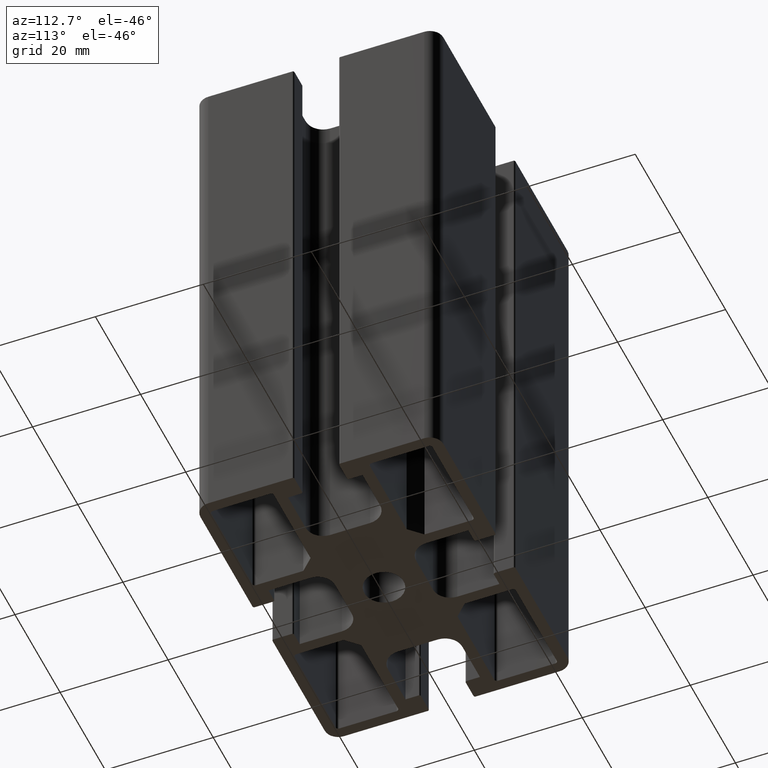
[diagram: clean part render]
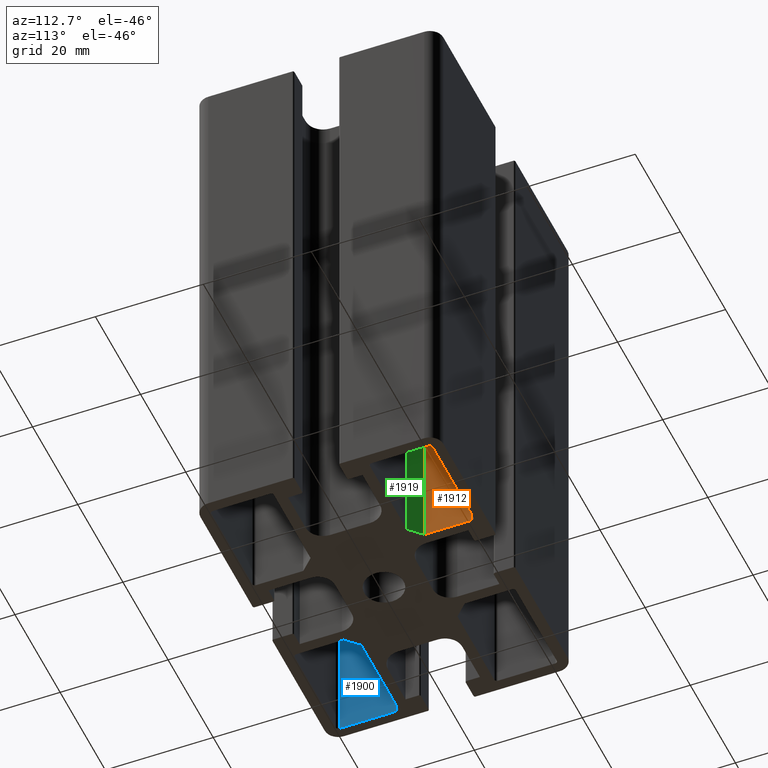
[diagram: same view with three faces highlighted in distinct colors, each labeled with its STEP entity id]
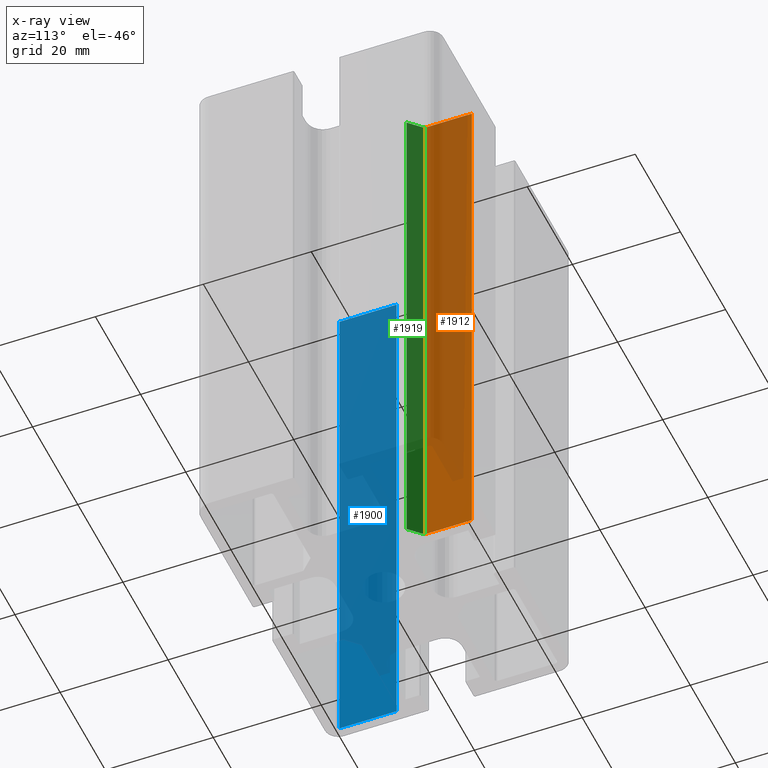
[diagram: x-ray of the same camera — body ghosted, the three highlighted faces saturated]
A machine part, auxiliary view with three faces highlighted in distinct colors.
The next image is the same camera in x-ray (body ghosted, the three faces saturated) — at least one of them is partly hidden behind the body in this view.
Their STEP definitions:

[orange] entity #1912 — the highlighted planar face has unit normal (-1, 0, 0).
#165=FACE_OUTER_BOUND('',#264,.T.);
#264=EDGE_LOOP('',(#1322,#1323,#1324,#1325));
#394=LINE('',#2850,#602);
#395=LINE('',#2852,#603);
#396=LINE('',#2854,#604);
#397=LINE('',#2855,#605);
#602=VECTOR('',#2274,100.);
#603=VECTOR('',#2275,8.76654762208545);
#604=VECTOR('',#2276,100.);
#605=VECTOR('',#2277,8.76654762208545);
#806=VERTEX_POINT('',#2848);
#807=VERTEX_POINT('',#2849);
#808=VERTEX_POINT('',#2851);
#809=VERTEX_POINT('',#2853);
#1016=EDGE_CURVE('',#806,#807,#394,.T.);
#1017=EDGE_CURVE('',#808,#807,#395,.T.);
#1018=EDGE_CURVE('',#809,#808,#396,.T.);
#1019=EDGE_CURVE('',#806,#809,#397,.T.);
#1322=ORIENTED_EDGE('',*,*,#1016,.T.);
#1323=ORIENTED_EDGE('',*,*,#1017,.F.);
#1324=ORIENTED_EDGE('',*,*,#1018,.F.);
#1325=ORIENTED_EDGE('',*,*,#1019,.F.);
#1848=PLANE('',#2025);
#1912=ADVANCED_FACE('',(#165),#1848,.F.);
#2025=AXIS2_PLACEMENT_3D('',#2847,#2272,#2273);
#2272=DIRECTION('center_axis',(-1.,0.,0.));
#2273=DIRECTION('ref_axis',(0.,-1.,0.));
#2274=DIRECTION('',(0.,0.,-1.));
#2275=DIRECTION('',(0.,-1.,0.));
#2276=DIRECTION('',(0.,0.,-1.));
#2277=DIRECTION('',(0.,1.,0.));
#2847=CARTESIAN_POINT('Origin',(8.90000000000072,20.,0.));
#2848=CARTESIAN_POINT('',(8.90000000000072,11.2334523779145,50.));
#2849=CARTESIAN_POINT('',(8.90000000000072,11.2334523779145,-50.));
#2850=CARTESIAN_POINT('',(8.90000000000072,11.2334523779145,0.));
#2851=CARTESIAN_POINT('',(8.90000000000072,20.,-50.));
#2852=CARTESIAN_POINT('',(8.90000000000072,10.0000000000001,-50.));
#2853=CARTESIAN_POINT('',(8.90000000000072,20.,50.));
#2854=CARTESIAN_POINT('',(8.90000000000072,20.,0.));
#2855=CARTESIAN_POINT('',(8.90000000000072,10.0000000000001,50.));

[blue] entity #1900 — the highlighted planar face has unit normal (-1, 0, 0).
#153=FACE_OUTER_BOUND('',#252,.T.);
#252=EDGE_LOOP('',(#1274,#1275,#1276,#1277));
#366=LINE('',#2776,#574);
#367=LINE('',#2780,#575);
#368=LINE('',#2782,#576);
#369=LINE('',#2783,#577);
#574=VECTOR('',#2202,100.);
#575=VECTOR('',#2207,10.5999999999996);
#576=VECTOR('',#2208,100.);
#577=VECTOR('',#2209,10.5999999999996);
#782=VERTEX_POINT('',#2773);
#783=VERTEX_POINT('',#2775);
#784=VERTEX_POINT('',#2779);
#785=VERTEX_POINT('',#2781);
#979=EDGE_CURVE('',#783,#782,#366,.T.);
#981=EDGE_CURVE('',#784,#782,#367,.T.);
#982=EDGE_CURVE('',#785,#784,#368,.T.);
#983=EDGE_CURVE('',#783,#785,#369,.T.);
#1274=ORIENTED_EDGE('',*,*,#979,.T.);
#1275=ORIENTED_EDGE('',*,*,#981,.F.);
#1276=ORIENTED_EDGE('',*,*,#982,.F.);
#1277=ORIENTED_EDGE('',*,*,#983,.F.);
#1840=PLANE('',#2005);
#1900=ADVANCED_FACE('',(#153),#1840,.F.);
#2005=AXIS2_PLACEMENT_3D('',#2778,#2205,#2206);
#2202=DIRECTION('',(0.,0.,-1.));
#2205=DIRECTION('center_axis',(-1.,0.,0.));
#2206=DIRECTION('ref_axis',(0.,-1.,0.));
#2207=DIRECTION('',(0.,-1.,0.));
#2208=DIRECTION('',(0.,0.,-1.));
#2209=DIRECTION('',(0.,1.,0.));
#2773=CARTESIAN_POINT('',(-28.0000000000001,-19.9999999999997,-50.));
#2775=CARTESIAN_POINT('',(-28.0000000000001,-19.9999999999997,50.));
#2776=CARTESIAN_POINT('',(-28.0000000000001,-19.9999999999997,0.));
#2778=CARTESIAN_POINT('Origin',(-28.0000000000001,-9.40000000000012,0.));
#2779=CARTESIAN_POINT('',(-28.0000000000001,-9.40000000000012,-50.));
#2780=CARTESIAN_POINT('',(-28.0000000000001,-4.69999999999992,-50.));
#2781=CARTESIAN_POINT('',(-28.0000000000001,-9.40000000000012,50.));
#2782=CARTESIAN_POINT('',(-28.0000000000001,-9.40000000000012,0.));
#2783=CARTESIAN_POINT('',(-28.0000000000001,-4.69999999999992,50.));

[green] entity #1919 — the highlighted planar face has unit normal (-0.7071, -0.7071, 0).
#172=FACE_OUTER_BOUND('',#271,.T.);
#271=EDGE_LOOP('',(#1350,#1351,#1352,#1353));
#394=LINE('',#2850,#602);
#408=LINE('',#2890,#616);
#410=LINE('',#2893,#618);
#411=LINE('',#2894,#619);
#602=VECTOR('',#2274,100.);
#616=VECTOR('',#2312,100.);
#618=VECTOR('',#2316,3.29999999999899);
#619=VECTOR('',#2317,3.29999999999899);
#806=VERTEX_POINT('',#2848);
#807=VERTEX_POINT('',#2849);
#820=VERTEX_POINT('',#2887);
#821=VERTEX_POINT('',#2889);
#1016=EDGE_CURVE('',#806,#807,#394,.T.);
#1036=EDGE_CURVE('',#820,#821,#408,.T.);
#1038=EDGE_CURVE('',#807,#820,#410,.T.);
#1039=EDGE_CURVE('',#821,#806,#411,.T.);
#1350=ORIENTED_EDGE('',*,*,#1036,.F.);
#1351=ORIENTED_EDGE('',*,*,#1038,.F.);
#1352=ORIENTED_EDGE('',*,*,#1016,.F.);
#1353=ORIENTED_EDGE('',*,*,#1039,.F.);
#1852=PLANE('',#2038);
#1919=ADVANCED_FACE('',(#172),#1852,.F.);
#2038=AXIS2_PLACEMENT_3D('',#2892,#2314,#2315);
#2274=DIRECTION('',(0.,0.,-1.));
#2312=DIRECTION('',(0.,0.,1.));
#2314=DIRECTION('center_axis',(-0.70710678118644,-0.707106781186655,0.));
#2315=DIRECTION('ref_axis',(0.707106781186655,-0.70710678118644,0.));
#2316=DIRECTION('',(0.707106781186655,-0.70710678118644,0.));
#2317=DIRECTION('',(-0.707106781186655,0.70710678118644,0.));
#2848=CARTESIAN_POINT('',(8.90000000000072,11.2334523779145,50.));
#2849=CARTESIAN_POINT('',(8.90000000000072,11.2334523779145,-50.));
#2850=CARTESIAN_POINT('',(8.90000000000072,11.2334523779145,0.));
#2887=CARTESIAN_POINT('',(11.233452377916,8.90000000000001,-50.));
#2889=CARTESIAN_POINT('',(11.233452377916,8.90000000000001,50.));
#2890=CARTESIAN_POINT('',(11.233452377916,8.90000000000001,0.));
#2892=CARTESIAN_POINT('Origin',(8.90000000000072,11.2334523779145,0.));
#2893=CARTESIAN_POINT('',(9.48336309447855,10.6500892834369,-50.));
#2894=CARTESIAN_POINT('',(9.48336309447855,10.6500892834369,50.));